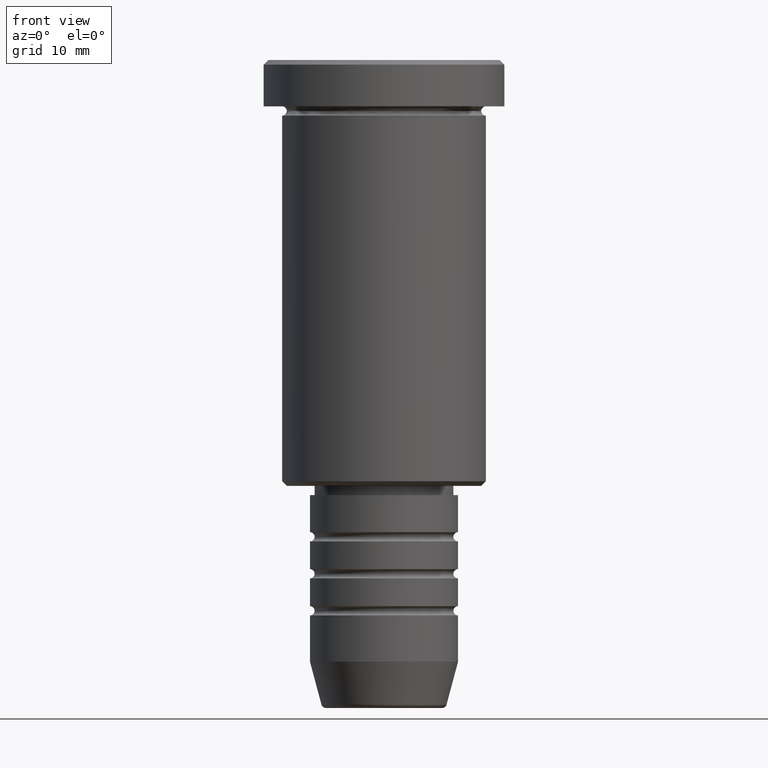
[diagram: clean part render]
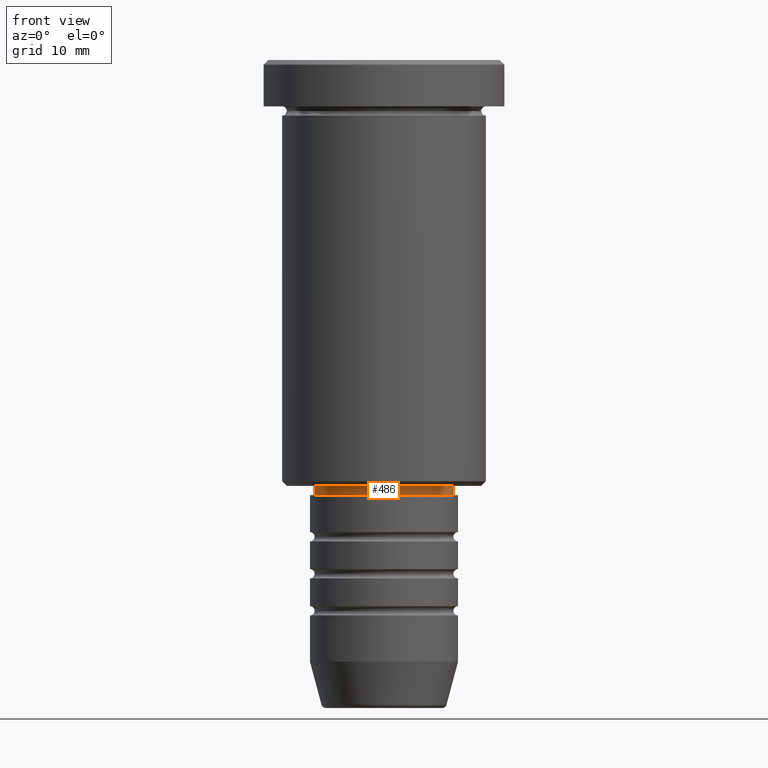
[diagram: same view with one face highlighted and labeled with its STEP entity id]
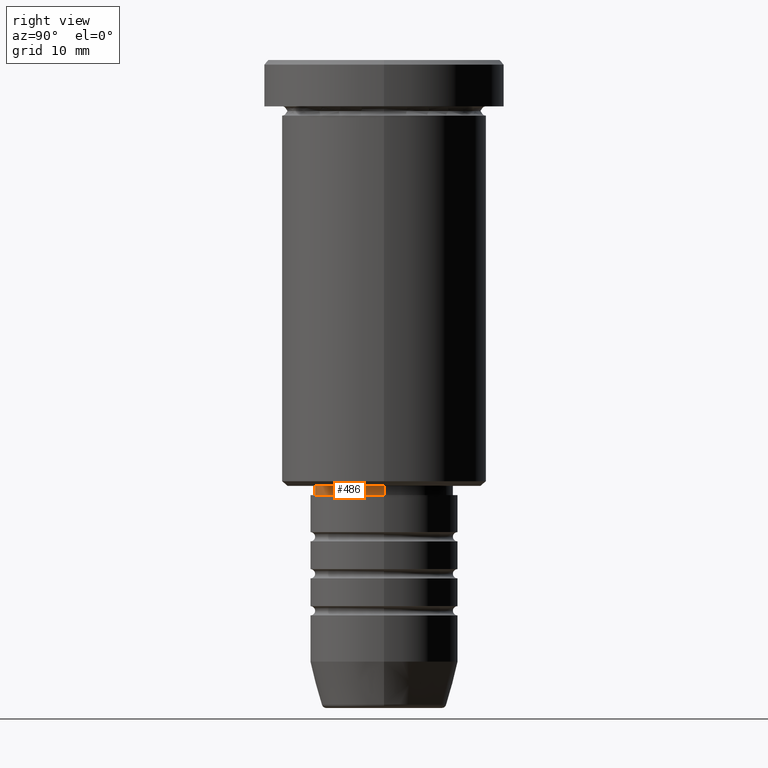
[diagram: same view with one face highlighted and labeled with its STEP entity id]
A machine part, front view. The second image highlights one B-rep face of the part: STEP entity #486.
A second angle (right view) of the same face is appended — the face is thin or edge-on in the first view.
In plain terms, the highlighted cylindrical surface (partial cylindrical patch) has radius 7.5 mm, axis along (-0, -0, 1).
Its self-contained STEP definition (entity closure, byte-faithful):
#10 = VERTEX_POINT ( 'NONE', #493 ) ;
#80 = AXIS2_PLACEMENT_3D ( 'NONE', #431, #718, #631 ) ;
#100 = ORIENTED_EDGE ( 'NONE', *, *, #612, .T. ) ;
#116 = VECTOR ( 'NONE', #1114, 1000.000000000000000 ) ;
#150 = ORIENTED_EDGE ( 'NONE', *, *, #1115, .T. ) ;
#164 = CARTESIAN_POINT ( 'NONE',  ( 0.000000000000000000, 0.000000000000000000, -47.00000000000000000 ) ) ;
#201 = FACE_OUTER_BOUND ( 'NONE', #412, .T. ) ;
#246 = EDGE_CURVE ( 'NONE', #10, #748, #320, .T. ) ;
#320 = LINE ( 'NONE', #688, #768 ) ;
#376 = CARTESIAN_POINT ( 'NONE',  ( 0.000000000000000000, 0.000000000000000000, 0.000000000000000000 ) ) ;
#378 = VERTEX_POINT ( 'NONE', #1002 ) ;
#412 = EDGE_LOOP ( 'NONE', ( #1146, #100, #150, #819 ) ) ;
#431 = CARTESIAN_POINT ( 'NONE',  ( 0.000000000000000000, 0.000000000000000000, -46.00000000000000000 ) ) ;
#471 = CYLINDRICAL_SURFACE ( 'NONE', #870, 7.500000000000000000 ) ;
#486 = ADVANCED_FACE ( 'NONE', ( #201 ), #471, .T. ) ;
#493 = CARTESIAN_POINT ( 'NONE',  ( -7.500000000000000000, 9.184850993605147944E-16, -47.00000000000000000 ) ) ;
#532 = CARTESIAN_POINT ( 'NONE',  ( 7.500000000000000000, 0.000000000000000000, -47.00000000000000000 ) ) ;
#569 = AXIS2_PLACEMENT_3D ( 'NONE', #164, #1162, #903 ) ;
#597 = VERTEX_POINT ( 'NONE', #532 ) ;
#612 = EDGE_CURVE ( 'NONE', #10, #597, #1059, .T. ) ;
#631 = DIRECTION ( 'NONE',  ( 1.000000000000000000, 0.000000000000000000, 0.000000000000000000 ) ) ;
#688 = CARTESIAN_POINT ( 'NONE',  ( -7.500000000000000000, 9.184850993605147944E-16, 0.000000000000000000 ) ) ;
#699 = CARTESIAN_POINT ( 'NONE',  ( -7.500000000000000000, 9.184850993605147944E-16, -46.00000000000000000 ) ) ;
#718 = DIRECTION ( 'NONE',  ( -0.000000000000000000, -0.000000000000000000, 1.000000000000000000 ) ) ;
#721 = CIRCLE ( 'NONE', #80, 7.500000000000000000 ) ;
#747 = DIRECTION ( 'NONE',  ( 1.000000000000000000, 0.000000000000000000, 0.000000000000000000 ) ) ;
#748 = VERTEX_POINT ( 'NONE', #699 ) ;
#751 = CARTESIAN_POINT ( 'NONE',  ( 7.500000000000000000, 0.000000000000000000, 0.000000000000000000 ) ) ;
#753 = DIRECTION ( 'NONE',  ( -0.000000000000000000, -0.000000000000000000, 1.000000000000000000 ) ) ;
#768 = VECTOR ( 'NONE', #1048, 1000.000000000000000 ) ;
#819 = ORIENTED_EDGE ( 'NONE', *, *, #831, .F. ) ;
#831 = EDGE_CURVE ( 'NONE', #748, #378, #721, .T. ) ;
#870 = AXIS2_PLACEMENT_3D ( 'NONE', #376, #753, #747 ) ;
#903 = DIRECTION ( 'NONE',  ( 1.000000000000000000, 0.000000000000000000, 0.000000000000000000 ) ) ;
#1002 = CARTESIAN_POINT ( 'NONE',  ( 7.500000000000000000, 0.000000000000000000, -46.00000000000000000 ) ) ;
#1035 = LINE ( 'NONE', #751, #116 ) ;
#1048 = DIRECTION ( 'NONE',  ( -0.000000000000000000, -0.000000000000000000, 1.000000000000000000 ) ) ;
#1059 = CIRCLE ( 'NONE', #569, 7.500000000000000000 ) ;
#1114 = DIRECTION ( 'NONE',  ( -0.000000000000000000, -0.000000000000000000, 1.000000000000000000 ) ) ;
#1115 = EDGE_CURVE ( 'NONE', #597, #378, #1035, .T. ) ;
#1146 = ORIENTED_EDGE ( 'NONE', *, *, #246, .F. ) ;
#1162 = DIRECTION ( 'NONE',  ( -0.000000000000000000, -0.000000000000000000, 1.000000000000000000 ) ) ;